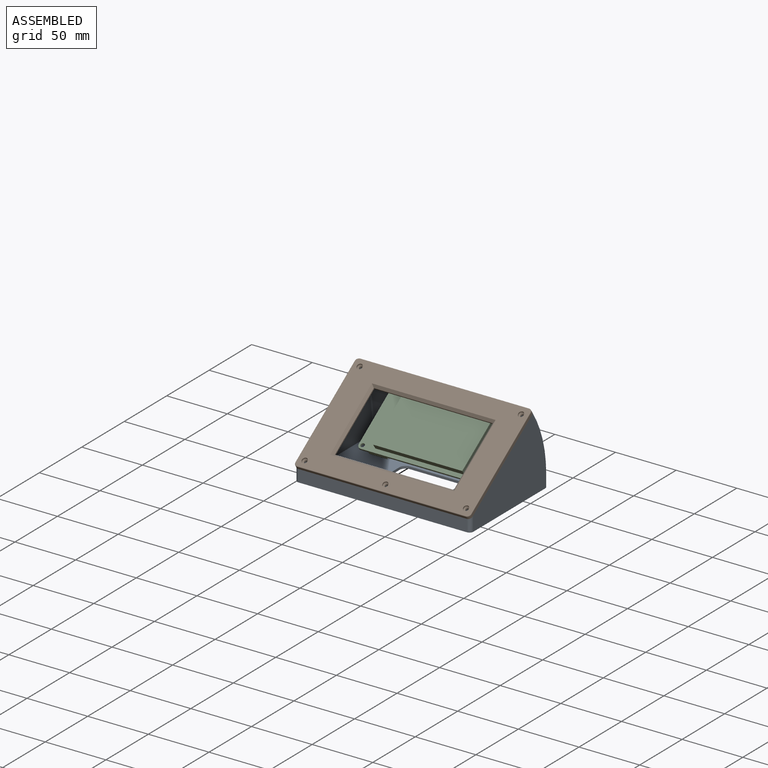
[diagram: assembled view]
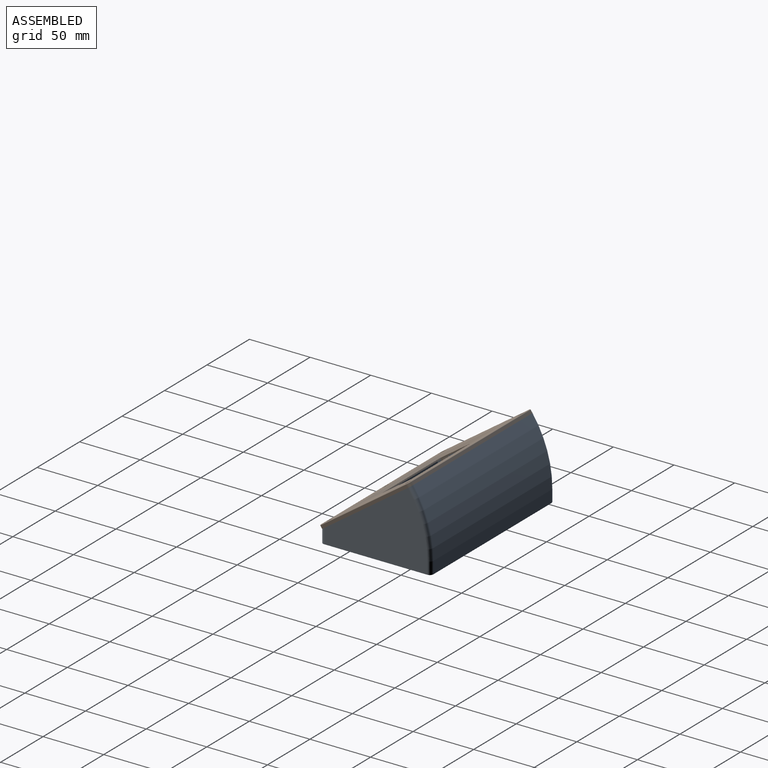
[diagram: assembled view, second angle]
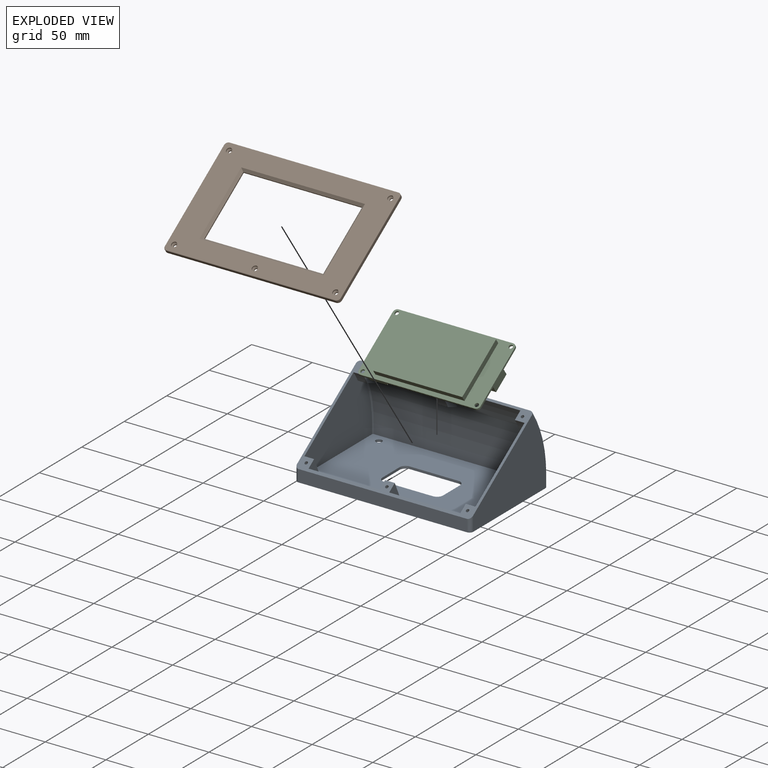
[diagram: exploded view]
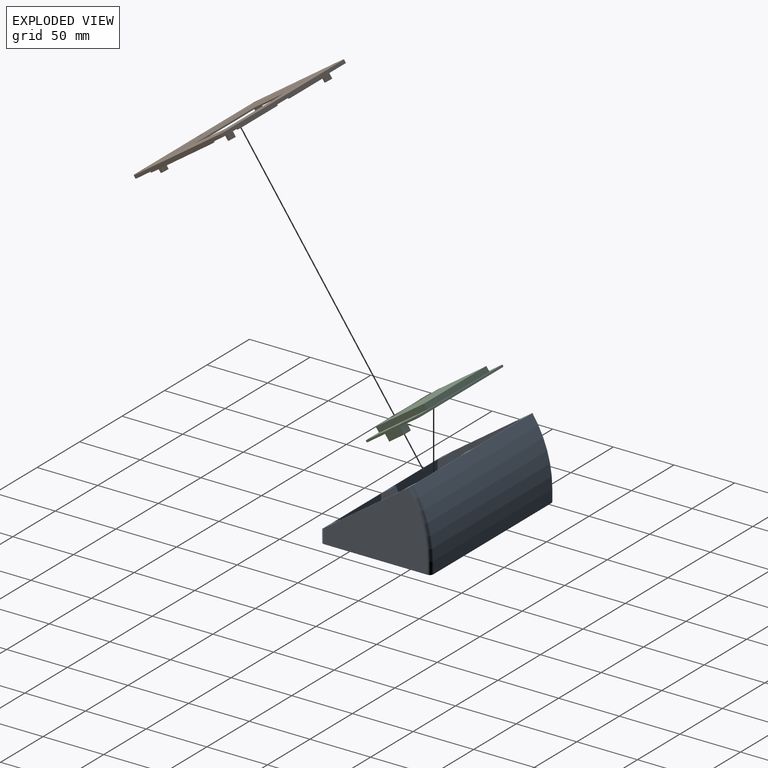
[diagram: exploded view, second angle]
ASSEMBLY  parts=3 mates=2
PART A: 65 faces, bbox 145x98.5x66.5 mm
  f0: plane 58.5x9.4mm, normal (0,-1,0), area 549.9mm2, adj f1,f12,f36,f39
  f1: plane 141x87mm, normal (0,0,1), area 10389.2mm2, adj f0,f2,f3,f4,f9,f14,f15,f16
  f2: plane 79.45x54.46mm, normal (-1,0,0), area 2834mm2, adj f1,f12,f32,f35,f60,f63,f64
  f3: plane 79.45x54.46mm, normal (1,0,0), area 2834mm2, adj f1,f12,f30,f33,f58,f61,f62
  f4: plane 58.5x9.4mm, normal (0,-1,0), area 549.9mm2, adj f1,f12,f34,f37
  f5: cylinder r=89mm len=139mm, axis (-1,0,0), area 7143.2mm2, adj f9,f12,f26,f27,f29,f31,f58,f59
  f6: plane 85x60.47mm, normal (1,0,0), area 3212.1mm2, adj f11,f12,f54,f55,f56
  f7: plane 139x10mm, normal (0,1,0), area 1390mm2, adj f11,f12,f56,f57
  f8: plane 85x60.47mm, normal (-1,0,0), area 3212.1mm2, adj f11,f12,f52,f53,f57
  f9: plane 139x8mm, normal (0,1,0), area 1112mm2, adj f1,f5,f61,f63
  f10: plane 139x10mm, normal (0,-1,0), area 1390mm2, adj f11,f13,f53,f55
  f11: plane 145x91mm, normal (0,0,-1), area 11623.8mm2, adj f6,f7,f8,f10,f14,f15,f16,f17
  f12: plane 145x74.54mm, normal (0,0.57,0.82), area 1336.2mm2, adj f0,f2,f3,f4,f5,f6,f7,f8
  f13: cylinder r=91mm len=139mm, axis (-1,0,0), area 7726.8mm2, adj f10,f12,f52,f54
  f14: plane 40x2mm, normal (0,-1,0), area 80mm2, adj f1,f11,f15,f21
  f15: cylinder r=5mm len=5mm, axis (0,0,-1), area 15.7mm2, adj f1,f11,f14,f16
  f16: plane 20x2mm, normal (-1,0,0), area 40mm2, adj f1,f11,f15,f17
  f17: cylinder r=5mm len=5mm, axis (0,0,-1), area 15.7mm2, adj f1,f11,f16,f18
  f18: plane 40x2mm, normal (0,1,0), area 80mm2, adj f1,f11,f17,f19
  f19: cylinder r=5mm len=5mm, axis (0,0,-1), area 15.7mm2, adj f1,f11,f18,f20
  f20: plane 20x2mm, normal (1,0,0), area 40mm2, adj f1,f11,f19,f21
  f21: cylinder r=5mm len=5mm, axis (0,0,-1), area 15.7mm2, adj f1,f11,f14,f20
  f22: cylinder r=2.6mm len=5.2mm, axis (0,0,-1), area 32.7mm2, adj f1,f11
  f23: cylinder r=2.6mm len=5.2mm, axis (0,0,-1), area 32.7mm2, adj f1,f11
  f24: cylinder r=2.6mm len=5.2mm, axis (0,0,-1), area 32.7mm2, adj f1,f11
  f25: cylinder r=2.6mm len=5.2mm, axis (0,0,-1), area 32.7mm2, adj f1,f11
  f26: plane 16.43x15.64mm, normal (1,0,0), area 113.9mm2, adj f5,f12,f28,f59
  f27: plane 16.43x15.64mm, normal (-1,0,0), area 113.9mm2, adj f5,f12,f28,f59
  f28: cylinder r=81mm len=8.12mm, axis (1,0,0), area 76.3mm2, adj f12,f26,f27,f59
  f29: plane 16.43x15.64mm, normal (1,0,0), area 113.9mm2, adj f5,f12,f30,f58
  f30: cylinder r=81mm len=8.12mm, axis (1,0,0), area 76.3mm2, adj f3,f12,f29,f58
  f31: plane 16.43x15.64mm, normal (-1,0,0), area 113.9mm2, adj f5,f12,f32,f60
  f32: cylinder r=81mm len=8.12mm, axis (1,0,0), area 76.3mm2, adj f2,f12,f31,f60
  f33: plane 13.99x8mm, normal (0,-0.91,0.42), area 123.5mm2, adj f1,f3,f12,f34
  f34: plane 13.99x13.08mm, normal (1,0,0), area 122.3mm2, adj f1,f4,f12,f33
  f35: plane 13.99x8mm, normal (0,-0.91,0.42), area 123.5mm2, adj f1,f2,f12,f36
  f36: plane 13.99x13.08mm, normal (-1,0,0), area 122.3mm2, adj f0,f1,f12,f35
  f37: plane 13.99x13.08mm, normal (-1,0,0), area 122.3mm2, adj f1,f4,f12,f38
  f38: plane 13.99x8mm, normal (0,-0.91,0.42), area 123.5mm2, adj f1,f12,f37,f39
  f39: plane 13.99x13.08mm, normal (1,0,0), area 122.3mm2, adj f0,f1,f12,f38
  f40: cylinder r=1.25mm len=5.53mm, axis (0,0.57,0.82), area 39.3mm2, adj f12,f41
  f41: plane 2.5x2.05mm, normal (0,0.57,0.82), area 4.9mm2, adj f40
  f42: cylinder r=1.25mm len=5.53mm, axis (0,0.57,0.82), area 39.3mm2, adj f12,f43
  f43: plane 2.5x2.05mm, normal (0,0.57,0.82), area 4.9mm2, adj f42
  f44: cylinder r=1.25mm len=5.53mm, axis (0,0.57,0.82), area 39.3mm2, adj f12,f45
  f45: plane 2.5x2.05mm, normal (0,0.57,0.82), area 4.9mm2, adj f44
  f46: cylinder r=1.25mm len=5.53mm, axis (0,0.57,0.82), area 39.3mm2, adj f12,f47
  f47: plane 2.5x2.05mm, normal (0,0.57,0.82), area 4.9mm2, adj f46
  f48: cylinder r=1.25mm len=5.53mm, axis (0,0.57,0.82), area 39.3mm2, adj f12,f49
  f49: plane 2.5x2.05mm, normal (0,0.57,0.82), area 4.9mm2, adj f48
  f50: cylinder r=1.25mm len=5.53mm, axis (0,0.57,0.82), area 39.3mm2, adj f12,f51
  f51: plane 2.5x2.05mm, normal (0,0.57,0.82), area 4.9mm2, adj f50
  f52: torus R=88mm, axis (-1,0,0), area 258.8mm2, adj f8,f12,f13,f53
  f53: cylinder r=3mm len=10mm, axis (0,0,-1), area 47.1mm2, adj f8,f10,f11,f52
  f54: torus R=88mm, axis (-1,0,0), area 258.8mm2, adj f6,f12,f13,f55
  f55: cylinder r=3mm len=10mm, axis (0,0,1), area 47.1mm2, adj f6,f10,f11,f54
  f56: cylinder r=3mm len=12.1mm, axis (0,0,-1), area 50.7mm2, adj f6,f7,f11,f12
  f57: cylinder r=3mm len=12.1mm, axis (0,0,1), area 50.7mm2, adj f7,f8,f11,f12
  f58: plane 10.64x8mm, normal (0,0.33,-0.94), area 89.9mm2, adj f3,f5,f29,f30,f62
  f59: plane 10.64x8mm, normal (0,0.33,-0.94), area 90.2mm2, adj f5,f26,f27,f28
  f60: plane 10.64x8mm, normal (0,0.33,-0.94), area 89.9mm2, adj f2,f5,f31,f32,f64
  f61: cylinder r=1mm len=8mm, axis (0,0,1), area 12.6mm2, adj f1,f3,f9,f62
  f62: torus R=88mm, axis (-1,0,0), area 56.1mm2, adj f3,f5,f58,f61
  f63: cylinder r=1mm len=8mm, axis (0,0,-1), area 12.6mm2, adj f1,f2,f9,f64
  f64: torus R=88mm, axis (-1,0,0), area 56.1mm2, adj f2,f5,f60,f63
PART B: 87 faces, bbox 145.5x91.5x7.7 mm
  f0: cylinder r=1.25mm len=2.5mm, axis (0,0,-1), area 7.9mm2, adj f5,f82
  f1: cylinder r=1.25mm len=2.5mm, axis (0,0,-1), area 7.9mm2, adj f5,f86
  f2: cylinder r=1.25mm len=2.5mm, axis (0,0,-1), area 7.9mm2, adj f5,f85
  f3: cylinder r=1.25mm len=2.5mm, axis (0,0,-1), area 7.9mm2, adj f5,f84
  f4: cylinder r=1.25mm len=2.5mm, axis (0,0,-1), area 7.9mm2, adj f5,f83
  f5: plane 145x91mm, normal (0,0,-1), area 6949.6mm2, adj f0,f1,f2,f3,f4,f6,f7,f8
  f6: plane 139x2.5mm, normal (0,-1,0), area 347.5mm2, adj f5,f61,f64,f72
  f7: plane 85x2.5mm, normal (1,0,0), area 212.5mm2, adj f5,f61,f62,f68
  f8: plane 139x2.5mm, normal (0,1,0), area 347.5mm2, adj f5,f62,f63,f65
  f9: plane 85x2.5mm, normal (-1,0,0), area 212.5mm2, adj f5,f63,f64,f69
  f10: plane 144x90mm, normal (0,0,1), area 6755.1mm2, adj f65,f66,f67,f68,f69,f70,f71,f72
  f11: plane 56x1mm, normal (1,0,0), area 56mm2, adj f5,f12,f14,f76
  f12: plane 98x1mm, normal (0,1,0), area 98mm2, adj f5,f11,f13,f75
  f13: plane 56x1mm, normal (-1,0,0), area 56mm2, adj f5,f12,f14,f73
  f14: plane 98x1mm, normal (0,-1,0), area 98mm2, adj f5,f11,f13,f74
  f15: cylinder r=1mm len=4.7mm, axis (0,0,1), area 29.5mm2, adj f17,f18
  f16: cylinder r=3mm len=6mm, axis (0,0,1), area 88.6mm2, adj f5,f17
  f17: plane 6x6mm, normal (0,0,-1), area 25.1mm2, adj f15,f16
  f18: plane 2x2mm, normal (0,0,-1), area 3.1mm2, adj f15
  f19: cylinder r=1mm len=4.7mm, axis (0,0,1), area 29.5mm2, adj f21,f22
  f20: cylinder r=3mm len=6mm, axis (0,0,1), area 88.6mm2, adj f5,f21
  f21: plane 6x6mm, normal (0,0,-1), area 25.1mm2, adj f19,f20
  f22: plane 2x2mm, normal (0,0,-1), area 3.1mm2, adj f19
  f23: cylinder r=1mm len=4.7mm, axis (0,0,1), area 29.5mm2, adj f25,f26
  f24: cylinder r=3mm len=6mm, axis (0,0,1), area 88.6mm2, adj f5,f25
  f25: plane 6x6mm, normal (0,0,-1), area 25.1mm2, adj f23,f24
  f26: plane 2x2mm, normal (0,0,-1), area 3.1mm2, adj f23
  f27: cylinder r=1mm len=4.7mm, axis (0,0,1), area 29.5mm2, adj f29,f30
  f28: cylinder r=3mm len=6mm, axis (0,0,1), area 88.6mm2, adj f5,f29
  f29: plane 6x6mm, normal (0,0,-1), area 25.1mm2, adj f27,f28
  f30: plane 2x2mm, normal (0,0,-1), area 3.1mm2, adj f27
  f31: plane 2x1mm, normal (1,0,0), area 2mm2, adj f5,f32,f34,f35
  f32: plane 45.5x1mm, normal (0,1,0), area 45.5mm2, adj f5,f31,f33,f35
  f33: plane 2x1mm, normal (-1,0,0), area 2mm2, adj f5,f32,f34,f35
  f34: plane 45.5x1mm, normal (0,-1,0), area 45.5mm2, adj f5,f31,f33,f35
  f35: plane 45.5x2mm, normal (0,0,-1), area 91mm2, adj f31,f32,f33,f34
  f36: plane 45.5x1mm, normal (0,1,0), area 45.5mm2, adj f5,f37,f39,f40
  f37: plane 2x1mm, normal (-1,0,0), area 2mm2, adj f5,f36,f38,f40
  f38: plane 45.5x1mm, normal (0,-1,0), area 45.5mm2, adj f5,f37,f39,f40
  f39: plane 2x1mm, normal (1,0,0), area 2mm2, adj f5,f36,f38,f40
  f40: plane 45.5x2mm, normal (0,0,-1), area 91mm2, adj f36,f37,f38,f39
  f41: plane 2x1mm, normal (1,0,0), area 2mm2, adj f5,f42,f44,f45
  f42: plane 45.5x1mm, normal (0,1,0), area 45.5mm2, adj f5,f41,f43,f45
  f43: plane 2x1mm, normal (-1,0,0), area 2mm2, adj f5,f42,f44,f45
  f44: plane 45.5x1mm, normal (0,-1,0), area 45.5mm2, adj f5,f41,f43,f45
  f45: plane 45.5x2mm, normal (0,0,-1), area 91mm2, adj f41,f42,f43,f44
  f46: plane 45.5x1mm, normal (0,1,0), area 45.5mm2, adj f5,f47,f49,f50
  f47: plane 2x1mm, normal (-1,0,0), area 2mm2, adj f5,f46,f48,f50
  f48: plane 45.5x1mm, normal (0,-1,0), area 45.5mm2, adj f5,f47,f49,f50
  f49: plane 2x1mm, normal (1,0,0), area 2mm2, adj f5,f46,f48,f50
  f50: plane 45.5x2mm, normal (0,0,-1), area 91mm2, adj f46,f47,f48,f49
  f51: plane 62x1mm, normal (-1,0,0), area 62mm2, adj f5,f52,f54,f55
  f52: plane 2x1mm, normal (0,-1,0), area 2mm2, adj f5,f51,f53,f55
  f53: plane 62x1mm, normal (1,0,0), area 62mm2, adj f5,f52,f54,f55
  f54: plane 2x1mm, normal (0,1,0), area 2mm2, adj f5,f51,f53,f55
  f55: plane 62x2mm, normal (0,0,-1), area 124mm2, adj f51,f52,f53,f54
  f56: plane 2x1mm, normal (0,-1,0), area 2mm2, adj f5,f57,f59,f60
  f57: plane 62x1mm, normal (1,0,0), area 62mm2, adj f5,f56,f58,f60
  f58: plane 2x1mm, normal (0,1,0), area 2mm2, adj f5,f57,f59,f60
  f59: plane 62x1mm, normal (-1,0,0), area 62mm2, adj f5,f56,f58,f60
  f60: plane 62x2mm, normal (0,0,-1), area 124mm2, adj f56,f57,f58,f59
  f61: cylinder r=3mm len=3mm, axis (0,0,-1), area 11.8mm2, adj f5,f6,f7,f70
  f62: cylinder r=3mm len=3mm, axis (0,0,1), area 11.8mm2, adj f5,f7,f8,f66
  f63: cylinder r=3mm len=3mm, axis (0,0,-1), area 11.8mm2, adj f5,f8,f9,f67
  f64: cylinder r=3mm len=3mm, axis (0,0,1), area 11.8mm2, adj f5,f6,f9,f71
  f65: cylinder r=0.5mm len=139mm, axis (1,0,0), area 109.2mm2, adj f8,f10,f66,f67
  f66: torus R=2.5mm, axis (0,0,1), area 3.5mm2, adj f10,f62,f65,f68
  f67: torus R=2.5mm, axis (0,0,1), area 3.5mm2, adj f10,f63,f65,f69
  f68: cylinder r=0.5mm len=85mm, axis (0,-1,0), area 66.8mm2, adj f7,f10,f66,f70
  f69: cylinder r=0.5mm len=85mm, axis (0,1,0), area 66.8mm2, adj f9,f10,f67,f71
  f70: torus R=2.5mm, axis (0,0,1), area 3.5mm2, adj f10,f61,f68,f72
  f71: torus R=2.5mm, axis (0,0,1), area 3.5mm2, adj f10,f64,f69,f72
  f72: cylinder r=0.5mm len=139mm, axis (-1,0,0), area 109.2mm2, adj f6,f10,f70,f71
  f73: plane 60x2mm, normal (-0.71,0,0.71), area 164mm2, adj f10,f13,f74,f75
  f74: plane 102x2mm, normal (0,-0.71,0.71), area 282.8mm2, adj f10,f14,f73,f76
  f75: plane 102x2mm, normal (0,0.71,0.71), area 282.8mm2, adj f10,f12,f73,f76
  f76: plane 60x2mm, normal (0.71,0,0.71), area 164mm2, adj f10,f11,f74,f75
  f77: cylinder r=2.25mm len=4.5mm, axis (0,0,1), area 14.1mm2, adj f10,f83
  f78: cylinder r=2.25mm len=4.5mm, axis (0,0,1), area 14.1mm2, adj f10,f84
  f79: cylinder r=2.25mm len=4.5mm, axis (0,0,1), area 14.1mm2, adj f10,f85
  f80: cylinder r=2.25mm len=4.5mm, axis (0,0,1), area 14.1mm2, adj f10,f86
  f81: cylinder r=2.25mm len=4.5mm, axis (0,0,1), area 14.1mm2, adj f10,f82
  f82: cone r=1.25mm half-angle=45deg, axis (0,0,1), area 15.6mm2, adj f0,f81
  f83: cone r=1.25mm half-angle=45deg, axis (0,0,1), area 15.6mm2, adj f4,f77
  f84: cone r=1.25mm half-angle=45deg, axis (0,0,1), area 15.6mm2, adj f3,f78
  f85: cone r=1.25mm half-angle=45deg, axis (0,0,1), area 15.6mm2, adj f2,f79
  f86: cone r=1.25mm half-angle=45deg, axis (0,0,1), area 15.6mm2, adj f1,f80
PART C: 29 faces, bbox 100.5x54.9x12.3 mm
  f0: plane 73.44x2mm, normal (0,0,1), area 146.9mm2, adj f1,f3,f14,f15
  f1: plane 48.54x4.7mm, normal (-1,0,0), area 223.5mm2, adj f0,f2,f12,f14,f15,f16
  f2: plane 73.44x4.6mm, normal (0,-1,0), area 337.8mm2, adj f1,f3,f12,f16
  f3: plane 48.54x4.7mm, normal (1,0,0), area 223.5mm2, adj f0,f2,f12,f14,f15,f16
  f4: plane 48.94x1.6mm, normal (1,0,0), area 78.3mm2, adj f12,f13,f25,f28
  f5: plane 94.5x3.6mm, normal (0,1,0), area 181.2mm2, adj f12,f13,f17,f18,f20,f25,f26
  f6: plane 48.94x7.6mm, normal (-1,0,0), area 168.3mm2, adj f12,f13,f21,f23,f24,f26,f27
  f7: cylinder r=1.6mm len=3.2mm, axis (0,0,-1), area 16.1mm2, adj f12,f13
  f8: cylinder r=1.6mm len=3.2mm, axis (0,0,-1), area 16.1mm2, adj f12,f13
  f9: cylinder r=1.6mm len=3.2mm, axis (0,0,-1), area 16.1mm2, adj f12,f13
  f10: cylinder r=1.6mm len=3.2mm, axis (0,0,-1), area 16.1mm2, adj f12,f13
  f11: plane 94.5x1.6mm, normal (0,-1,0), area 151.2mm2, adj f12,f13,f27,f28
  f12: plane 100.5x54.94mm, normal (0,0,1), area 1916.8mm2, adj f1,f2,f3,f4,f5,f6,f7,f8
  f13: plane 100.5x54.94mm, normal (0,0,-1), area 5136.6mm2, adj f4,f5,f6,f7,f8,f9,f10,f11
  f14: plane 73.44x4.7mm, normal (0,1,0), area 345.2mm2, adj f0,f1,f3,f12
  f15: plane 73.44x0.1mm, normal (0,-1,0), area 7.3mm2, adj f0,f1,f3,f16
  f16: plane 73.44x46.54mm, normal (0,0,1), area 3417.9mm2, adj f1,f2,f3,f15
  f17: plane 15x2mm, normal (-1,0,0), area 30mm2, adj f5,f13,f19,f20
  f18: plane 15x2mm, normal (1,0,0), area 30mm2, adj f5,f13,f19,f20
  f19: plane 15x2mm, normal (0,-1,0), area 30mm2, adj f13,f17,f18,f20
  f20: plane 15x15mm, normal (0,0,-1), area 225mm2, adj f5,f17,f18,f19
  f21: plane 8x6mm, normal (0,1,0), area 48mm2, adj f6,f13,f22,f24
  f22: plane 15x6mm, normal (1,0,0), area 90mm2, adj f13,f21,f23,f24
  f23: plane 8x6mm, normal (0,-1,0), area 48mm2, adj f6,f13,f22,f24
  f24: plane 15x8mm, normal (0,0,-1), area 120mm2, adj f6,f21,f22,f23
  f25: cylinder r=3mm len=3mm, axis (0,0,-1), area 7.5mm2, adj f4,f5,f12,f13
  f26: cylinder r=3mm len=3mm, axis (0,0,1), area 7.5mm2, adj f5,f6,f12,f13
  f27: cylinder r=3mm len=3mm, axis (0,0,-1), area 7.5mm2, adj f6,f11,f12,f13
  f28: cylinder r=3mm len=3mm, axis (0,0,1), area 7.5mm2, adj f4,f11,f12,f13
PLACE A rot(axis=(0,0,1),180deg) t=(0,0,0)mm
PLACE B rot(axis=(1,0,0),35deg) t=(0,-4.62,30.94)mm
PLACE C rot(axis=(0,-0.3,0.95),180deg) t=(9.75,5.11,37.75)mm
MATE fastened C.f8 <-> B.f23  axis (0,-0.57,0.82) through (56.8,24.24,53.1)mm
MATE fastened B.f2 <-> A.f50  axis (0,0.57,-0.82) through (66.5,24.13,58.75)mm
